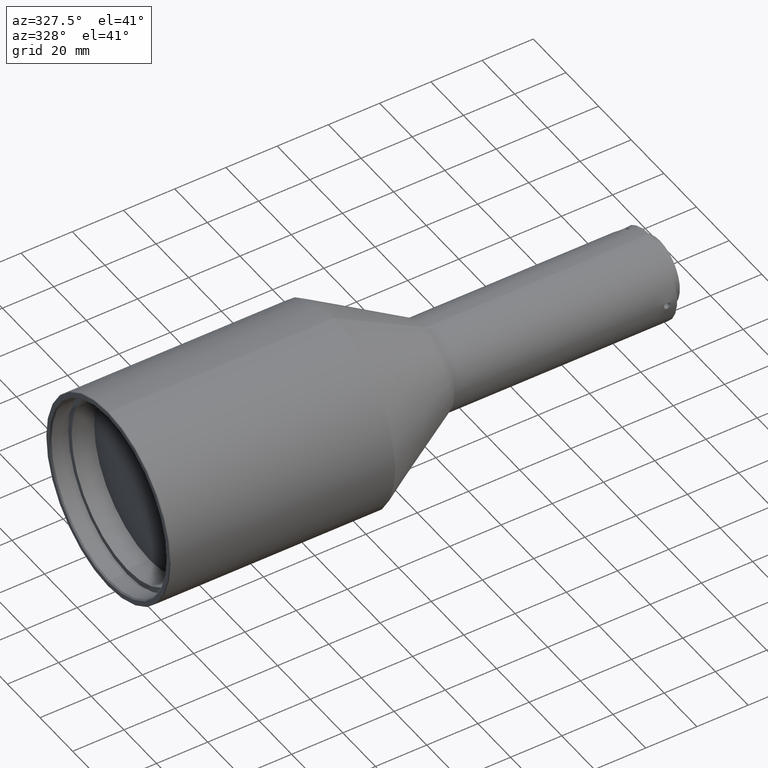
[diagram: clean part render]
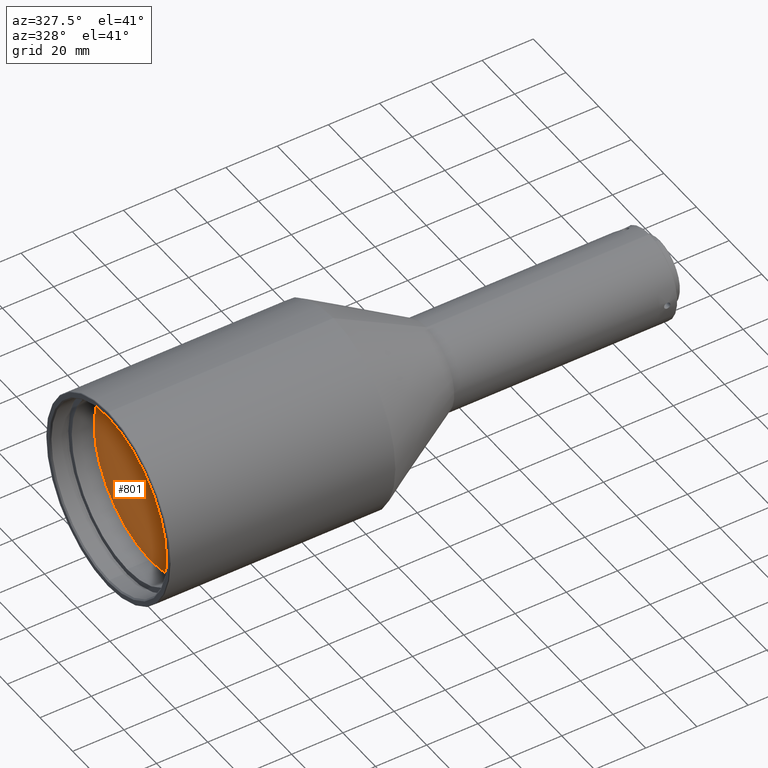
[diagram: same view with one face highlighted and labeled with its STEP entity id]
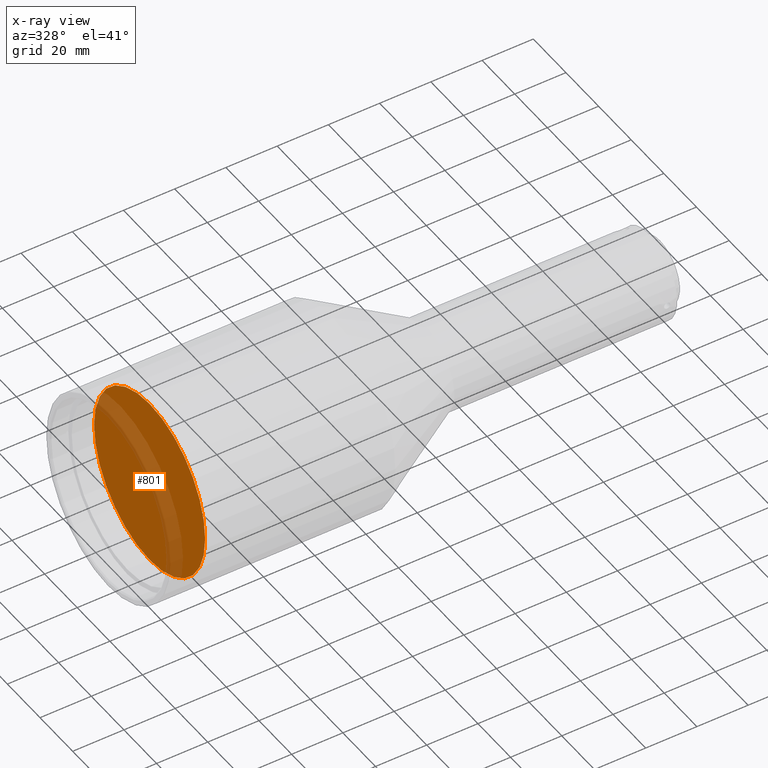
[diagram: x-ray of the same camera — body ghosted, the highlighted face saturated]
A machine part, auxiliary view. The second image highlights one B-rep face of the part: STEP entity #801.
The next image is the same camera in x-ray: the body ghosted, the highlighted face saturated — about 24% of this face is hidden behind the body in this view.
In plain terms, the highlighted planar face has unit normal (-1, 0, 0).
Its self-contained STEP definition (entity closure, byte-faithful):
#46 = FACE_OUTER_BOUND ( 'NONE', #989, .T. ) ;
#124 = CARTESIAN_POINT ( 'NONE',  ( -71.73291002211800560, 0.000000000000000000, -34.00000000000000000 ) ) ;
#160 = EDGE_CURVE ( 'NONE', #2364, #443, #1267, .T. ) ;
#188 = ORIENTED_EDGE ( 'NONE', *, *, #160, .T. ) ;
#196 = AXIS2_PLACEMENT_3D ( 'NONE', #203, #426, #1525 ) ;
#203 = CARTESIAN_POINT ( 'NONE',  ( -71.73291002211800560, 0.000000000000000000, 0.000000000000000000 ) ) ;
#357 = AXIS2_PLACEMENT_3D ( 'NONE', #2422, #452, #490 ) ;
#426 = DIRECTION ( 'NONE',  ( -1.000000000000000000, 0.000000000000000000, 0.000000000000000000 ) ) ;
#443 = VERTEX_POINT ( 'NONE', #124 ) ;
#452 = DIRECTION ( 'NONE',  ( -1.000000000000000000, 0.000000000000000000, 0.000000000000000000 ) ) ;
#471 = CIRCLE ( 'NONE', #357, 34.00000000000000000 ) ;
#490 = DIRECTION ( 'NONE',  ( 0.000000000000000000, 0.000000000000000000, 1.000000000000000000 ) ) ;
#769 = AXIS2_PLACEMENT_3D ( 'NONE', #1557, #2329, #774 ) ;
#774 = DIRECTION ( 'NONE',  ( 0.000000000000000000, 0.000000000000000000, 1.000000000000000000 ) ) ;
#801 = ADVANCED_FACE ( 'NONE', ( #46 ), #2110, .T. ) ;
#989 = EDGE_LOOP ( 'NONE', ( #1901, #188 ) ) ;
#1267 = CIRCLE ( 'NONE', #196, 34.00000000000000000 ) ;
#1525 = DIRECTION ( 'NONE',  ( 0.000000000000000000, 0.000000000000000000, 1.000000000000000000 ) ) ;
#1557 = CARTESIAN_POINT ( 'NONE',  ( -71.73291002211800560, 0.4631865830816046525, 0.000000000000000000 ) ) ;
#1901 = ORIENTED_EDGE ( 'NONE', *, *, #2136, .T. ) ;
#2096 = CARTESIAN_POINT ( 'NONE',  ( -71.73291002211800560, 4.163799117101000559E-15, 34.00000000000000000 ) ) ;
#2110 = PLANE ( 'NONE',  #769 ) ;
#2136 = EDGE_CURVE ( 'NONE', #443, #2364, #471, .T. ) ;
#2329 = DIRECTION ( 'NONE',  ( -1.000000000000000000, 0.000000000000000000, 0.000000000000000000 ) ) ;
#2364 = VERTEX_POINT ( 'NONE', #2096 ) ;
#2422 = CARTESIAN_POINT ( 'NONE',  ( -71.73291002211800560, 0.000000000000000000, 0.000000000000000000 ) ) ;